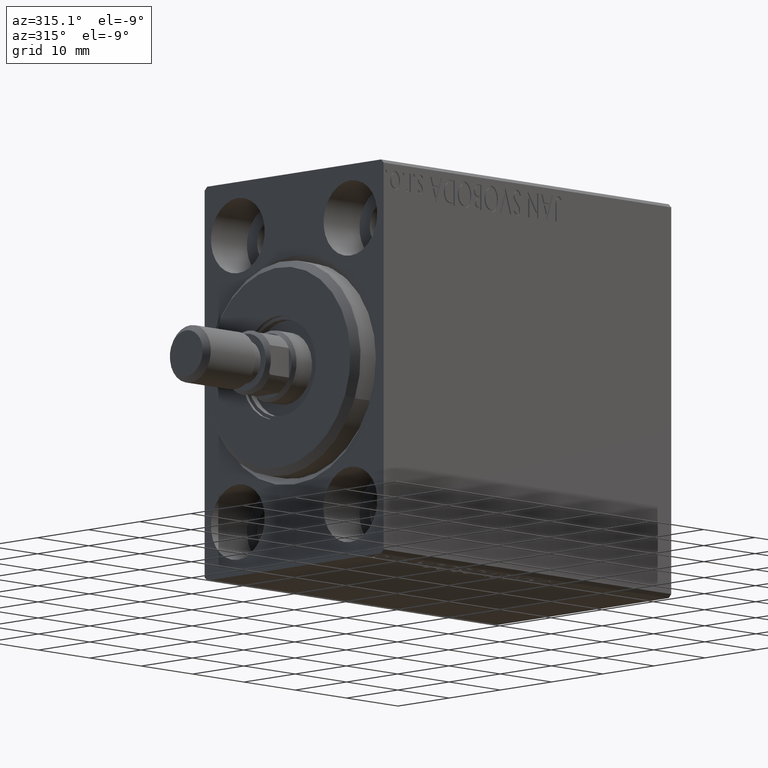
[diagram: clean part render]
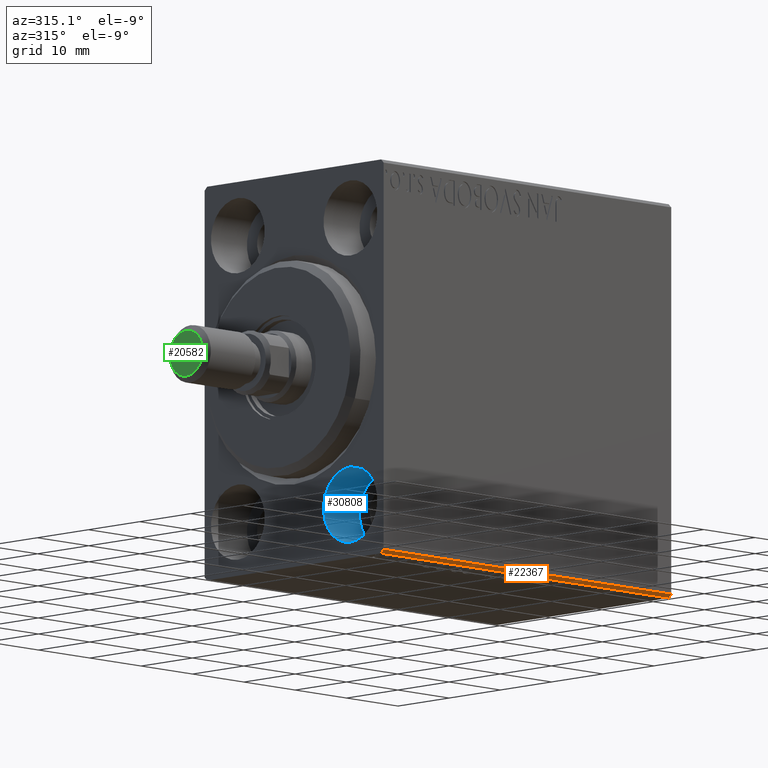
[diagram: same view with three faces highlighted in distinct colors, each labeled with its STEP entity id]
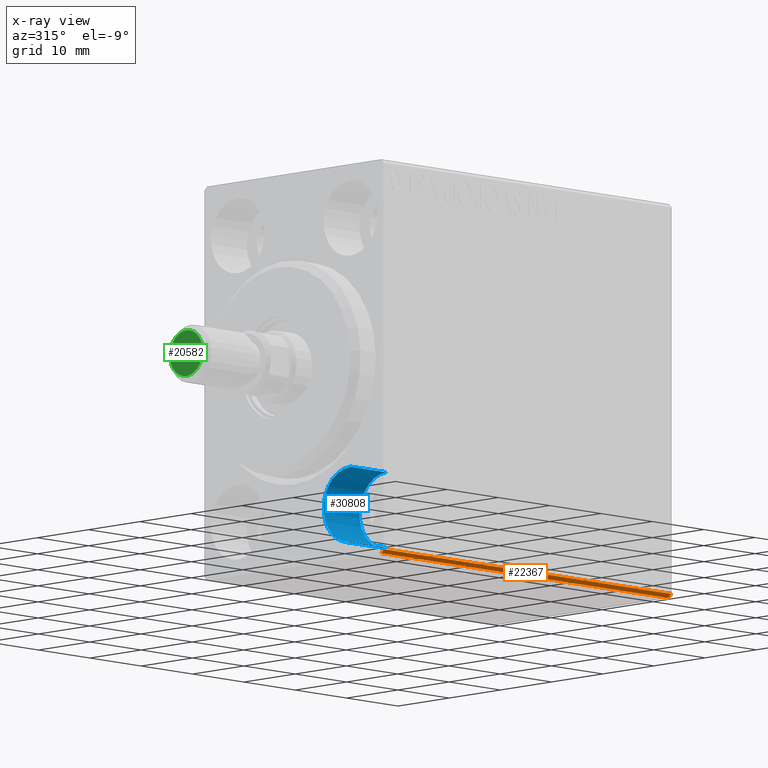
[diagram: x-ray of the same camera — body ghosted, the three highlighted faces saturated]
A machine part, auxiliary view with three faces highlighted in distinct colors.
The next image is the same camera in x-ray (body ghosted, the three faces saturated) — at least one of them is partly hidden behind the body in this view.
Their STEP definitions:

[orange] entity #22367 — the highlighted planar face has unit normal (0, 0.7071, 0.7071).
#597 = ORIENTED_EDGE ( 'NONE', *, *, #8899, .F. ) ;
#2197 = DIRECTION ( 'NONE',  ( -1.000000000000000000, -0.000000000000000000, 0.000000000000000000 ) ) ;
#3941 = VECTOR ( 'NONE', #16958, 1000.000000000000114 ) ;
#5263 = ORIENTED_EDGE ( 'NONE', *, *, #19200, .F. ) ;
#5957 = VERTEX_POINT ( 'NONE', #25292 ) ;
#5959 = CARTESIAN_POINT ( 'NONE',  ( 56.00000000000000000, -22.25000000000000355, -22.25000000000000355 ) ) ;
#6607 = DIRECTION ( 'NONE',  ( -0.000000000000000000, -0.7071067811865474617, 0.7071067811865474617 ) ) ;
#6728 = DIRECTION ( 'NONE',  ( 1.000000000000000000, 0.000000000000000000, 0.000000000000000000 ) ) ;
#8899 = EDGE_CURVE ( 'NONE', #20283, #18112, #19454, .T. ) ;
#12319 = CARTESIAN_POINT ( 'NONE',  ( 56.00000000000000000, -16.99999999999999289, -27.50000000000000355 ) ) ;
#14138 = CARTESIAN_POINT ( 'NONE',  ( 56.00000000000000000, -17.50000000000000000, -26.99999999999999645 ) ) ;
#15066 = LINE ( 'NONE', #21376, #25869 ) ;
#16958 = DIRECTION ( 'NONE',  ( -0.000000000000000000, 0.7071067811865474617, -0.7071067811865474617 ) ) ;
#17249 = AXIS2_PLACEMENT_3D ( 'NONE', #19294, #33004, #2197 ) ;
#18112 = VERTEX_POINT ( 'NONE', #12319 ) ;
#18154 = VECTOR ( 'NONE', #6607, 1000.000000000000114 ) ;
#19200 = EDGE_CURVE ( 'NONE', #5957, #20283, #27638, .T. ) ;
#19294 = CARTESIAN_POINT ( 'NONE',  ( 56.00000000000000000, -16.99999999999999289, -27.50000000000000355 ) ) ;
#19454 = LINE ( 'NONE', #5959, #3941 ) ;
#20283 = VERTEX_POINT ( 'NONE', #14138 ) ;
#21376 = CARTESIAN_POINT ( 'NONE',  ( 56.00000000000000000, -16.99999999999999289, -27.50000000000000355 ) ) ;
#22367 = ADVANCED_FACE ( 'NONE', ( #36378 ), #43352, .F. ) ;
#23260 = CARTESIAN_POINT ( 'NONE',  ( 0.000000000000000000, -16.99999999999999289, -27.50000000000000355 ) ) ;
#25292 = CARTESIAN_POINT ( 'NONE',  ( 0.000000000000000000, -17.50000000000000000, -26.99999999999999645 ) ) ;
#25735 = EDGE_CURVE ( 'NONE', #18112, #34803, #15066, .T. ) ;
#25869 = VECTOR ( 'NONE', #41402, 1000.000000000000000 ) ;
#27638 = LINE ( 'NONE', #44079, #29374 ) ;
#28017 = ORIENTED_EDGE ( 'NONE', *, *, #33873, .F. ) ;
#29374 = VECTOR ( 'NONE', #6728, 1000.000000000000000 ) ;
#33004 = DIRECTION ( 'NONE',  ( 0.000000000000000000, 0.7071067811865475727, 0.7071067811865475727 ) ) ;
#33873 = EDGE_CURVE ( 'NONE', #34803, #5957, #37857, .T. ) ;
#34803 = VERTEX_POINT ( 'NONE', #38518 ) ;
#36378 = FACE_OUTER_BOUND ( 'NONE', #38609, .T. ) ;
#37857 = LINE ( 'NONE', #23260, #18154 ) ;
#38518 = CARTESIAN_POINT ( 'NONE',  ( 0.000000000000000000, -16.99999999999999289, -27.50000000000000355 ) ) ;
#38609 = EDGE_LOOP ( 'NONE', ( #597, #5263, #28017, #40003 ) ) ;
#40003 = ORIENTED_EDGE ( 'NONE', *, *, #25735, .F. ) ;
#41402 = DIRECTION ( 'NONE',  ( -1.000000000000000000, 0.000000000000000000, 0.000000000000000000 ) ) ;
#43352 = PLANE ( 'NONE',  #17249 ) ;
#44079 = CARTESIAN_POINT ( 'NONE',  ( 56.00000000000000000, -17.50000000000000000, -26.99999999999999645 ) ) ;

[blue] entity #30808 — the highlighted cylindrical surface (partial cylindrical patch) has radius 5.25 mm, axis along (-1, -0, -0).
#219 = EDGE_CURVE ( 'NONE', #13418, #29012, #34642, .T. ) ;
#3190 = EDGE_CURVE ( 'NONE', #39276, #21460, #17541, .T. ) ;
#6674 = FACE_OUTER_BOUND ( 'NONE', #25894, .T. ) ;
#7191 = CIRCLE ( 'NONE', #27928, 5.250000000000000888 ) ;
#8352 = CARTESIAN_POINT ( 'NONE',  ( 0.000000000000000000, -11.00000000000000355, -14.75000000000000000 ) ) ;
#8517 = VECTOR ( 'NONE', #37560, 1000.000000000000000 ) ;
#11022 = DIRECTION ( 'NONE',  ( -1.000000000000000000, -0.000000000000000000, -0.000000000000000000 ) ) ;
#13418 = VERTEX_POINT ( 'NONE', #25992 ) ;
#15929 = AXIS2_PLACEMENT_3D ( 'NONE', #41523, #21059, #20397 ) ;
#16368 = DIRECTION ( 'NONE',  ( -1.000000000000000000, 0.000000000000000000, 0.000000000000000000 ) ) ;
#17541 = LINE ( 'NONE', #41602, #8517 ) ;
#17808 = VECTOR ( 'NONE', #11022, 1000.000000000000000 ) ;
#19548 = AXIS2_PLACEMENT_3D ( 'NONE', #25291, #38991, #35848 ) ;
#20397 = DIRECTION ( 'NONE',  ( 0.000000000000000000, 0.000000000000000000, 1.000000000000000000 ) ) ;
#20732 = ORIENTED_EDGE ( 'NONE', *, *, #3190, .F. ) ;
#21059 = DIRECTION ( 'NONE',  ( -1.000000000000000000, -0.000000000000000000, -0.000000000000000000 ) ) ;
#21460 = VERTEX_POINT ( 'NONE', #31296 ) ;
#22443 = EDGE_CURVE ( 'NONE', #13418, #39276, #7191, .T. ) ;
#24527 = CARTESIAN_POINT ( 'NONE',  ( 7.000000000000000000, -11.00000000000000355, -14.75000000000000000 ) ) ;
#25286 = CIRCLE ( 'NONE', #19548, 5.250000000000000888 ) ;
#25291 = CARTESIAN_POINT ( 'NONE',  ( 0.000000000000000000, -11.00000000000000355, -20.00000000000000000 ) ) ;
#25894 = EDGE_LOOP ( 'NONE', ( #20732, #35777, #31646, #26028 ) ) ;
#25992 = CARTESIAN_POINT ( 'NONE',  ( 7.000000000000000000, -11.00000000000000355, -14.75000000000000000 ) ) ;
#26028 = ORIENTED_EDGE ( 'NONE', *, *, #32905, .T. ) ;
#27928 = AXIS2_PLACEMENT_3D ( 'NONE', #43808, #16368, #34109 ) ;
#28112 = CARTESIAN_POINT ( 'NONE',  ( 7.000000000000000000, -11.00000000000000355, -25.25000000000000000 ) ) ;
#29012 = VERTEX_POINT ( 'NONE', #8352 ) ;
#30736 = CYLINDRICAL_SURFACE ( 'NONE', #15929, 5.250000000000000888 ) ;
#30808 = ADVANCED_FACE ( 'NONE', ( #6674 ), #30736, .F. ) ;
#31296 = CARTESIAN_POINT ( 'NONE',  ( 0.000000000000000000, -11.00000000000000355, -25.25000000000000000 ) ) ;
#31646 = ORIENTED_EDGE ( 'NONE', *, *, #219, .T. ) ;
#32905 = EDGE_CURVE ( 'NONE', #29012, #21460, #25286, .T. ) ;
#34109 = DIRECTION ( 'NONE',  ( 0.000000000000000000, 0.000000000000000000, 1.000000000000000000 ) ) ;
#34642 = LINE ( 'NONE', #24527, #17808 ) ;
#35777 = ORIENTED_EDGE ( 'NONE', *, *, #22443, .F. ) ;
#35848 = DIRECTION ( 'NONE',  ( 0.000000000000000000, 0.000000000000000000, 1.000000000000000000 ) ) ;
#37560 = DIRECTION ( 'NONE',  ( -1.000000000000000000, -0.000000000000000000, -0.000000000000000000 ) ) ;
#38991 = DIRECTION ( 'NONE',  ( -1.000000000000000000, 0.000000000000000000, 0.000000000000000000 ) ) ;
#39276 = VERTEX_POINT ( 'NONE', #28112 ) ;
#41523 = CARTESIAN_POINT ( 'NONE',  ( 7.000000000000000000, -11.00000000000000355, -20.00000000000000000 ) ) ;
#41602 = CARTESIAN_POINT ( 'NONE',  ( 7.000000000000000000, -11.00000000000000355, -25.25000000000000000 ) ) ;
#43808 = CARTESIAN_POINT ( 'NONE',  ( 7.000000000000000000, -11.00000000000000355, -20.00000000000000000 ) ) ;

[green] entity #20582 — the highlighted planar face has unit normal (1, 0, 0).
#105 = CIRCLE ( 'NONE', #43956, 3.199999999999999734 ) ;
#2529 = DIRECTION ( 'NONE',  ( 1.000000000000000000, 0.000000000000000000, 0.000000000000000000 ) ) ;
#7293 = CARTESIAN_POINT ( 'NONE',  ( -3.199999999999999734, 4.408728476930470165E-16, 0.000000000000000000 ) ) ;
#8838 = DIRECTION ( 'NONE',  ( -0.000000000000000000, -0.000000000000000000, -1.000000000000000000 ) ) ;
#16602 = CIRCLE ( 'NONE', #28088, 3.199999999999999734 ) ;
#16995 = EDGE_LOOP ( 'NONE', ( #17376, #41783 ) ) ;
#17213 = AXIS2_PLACEMENT_3D ( 'NONE', #27522, #38087, #21212 ) ;
#17376 = ORIENTED_EDGE ( 'NONE', *, *, #28726, .T. ) ;
#20582 = ADVANCED_FACE ( 'NONE', ( #24378 ), #28183, .F. ) ;
#21212 = DIRECTION ( 'NONE',  ( 1.000000000000000000, 0.000000000000000000, -0.000000000000000000 ) ) ;
#24378 = FACE_OUTER_BOUND ( 'NONE', #16995, .T. ) ;
#25499 = DIRECTION ( 'NONE',  ( 1.000000000000000000, 0.000000000000000000, 0.000000000000000000 ) ) ;
#27522 = CARTESIAN_POINT ( 'NONE',  ( 0.000000000000000000, 0.000000000000000000, 0.000000000000000000 ) ) ;
#28088 = AXIS2_PLACEMENT_3D ( 'NONE', #37726, #35178, #25499 ) ;
#28183 = PLANE ( 'NONE',  #17213 ) ;
#28726 = EDGE_CURVE ( 'NONE', #31363, #35286, #16602, .T. ) ;
#31363 = VERTEX_POINT ( 'NONE', #32113 ) ;
#32027 = EDGE_CURVE ( 'NONE', #35286, #31363, #105, .T. ) ;
#32113 = CARTESIAN_POINT ( 'NONE',  ( 3.199999999999999734, 0.000000000000000000, 0.000000000000000000 ) ) ;
#35178 = DIRECTION ( 'NONE',  ( -0.000000000000000000, -0.000000000000000000, -1.000000000000000000 ) ) ;
#35286 = VERTEX_POINT ( 'NONE', #7293 ) ;
#37726 = CARTESIAN_POINT ( 'NONE',  ( 0.000000000000000000, 0.000000000000000000, 0.000000000000000000 ) ) ;
#38087 = DIRECTION ( 'NONE',  ( 0.000000000000000000, 0.000000000000000000, 1.000000000000000000 ) ) ;
#41783 = ORIENTED_EDGE ( 'NONE', *, *, #32027, .T. ) ;
#43027 = CARTESIAN_POINT ( 'NONE',  ( 0.000000000000000000, 0.000000000000000000, 0.000000000000000000 ) ) ;
#43956 = AXIS2_PLACEMENT_3D ( 'NONE', #43027, #8838, #2529 ) ;